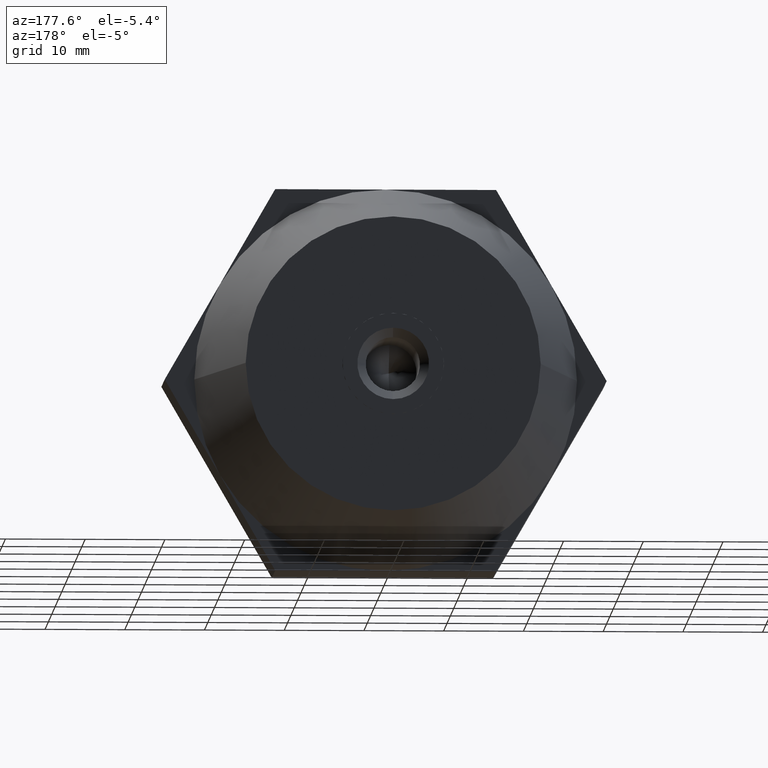
[diagram: clean part render]
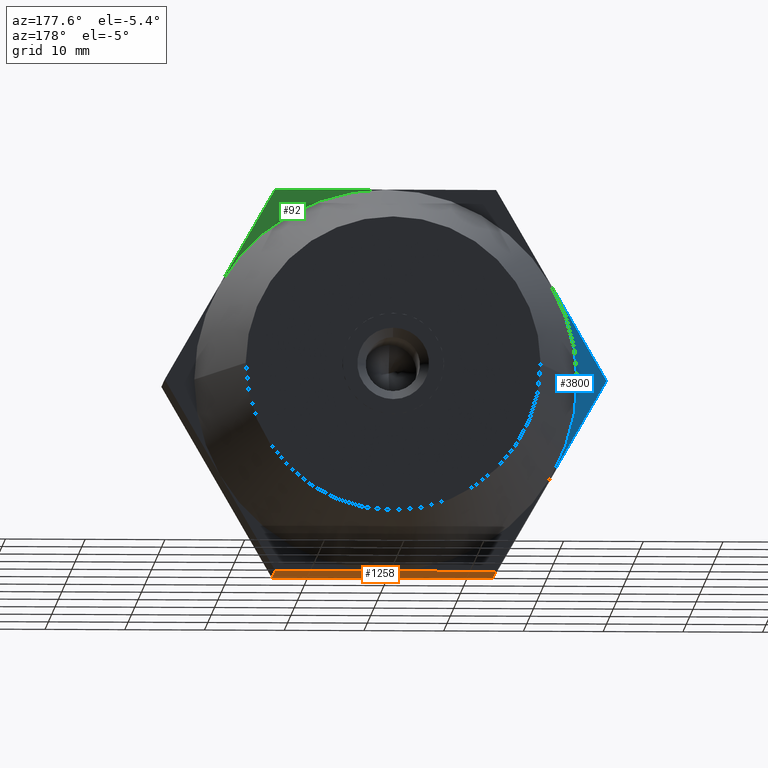
[diagram: same view with three faces highlighted in distinct colors, each labeled with its STEP entity id]
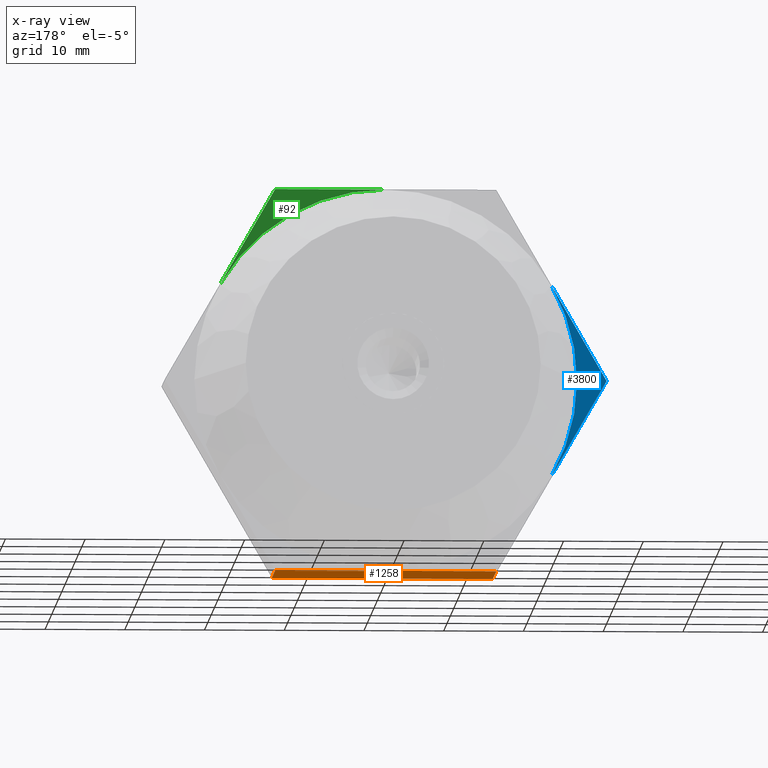
[diagram: x-ray of the same camera — body ghosted, the three highlighted faces saturated]
A machine part, auxiliary view with three faces highlighted in distinct colors.
The next image is the same camera in x-ray (body ghosted, the three faces saturated) — at least one of them is partly hidden behind the body in this view.
Their STEP definitions:

[orange] entity #1258 — the highlighted planar face has unit normal (0, 0, 1).
#95 = LINE ( 'NONE', #1515, #1305 ) ;
#148 = CARTESIAN_POINT ( 'NONE',  ( -13.85640646055101900, 5.000000000000000000, -24.00000000000000000 ) ) ;
#239 = CARTESIAN_POINT ( 'NONE',  ( 13.85640646055100000, 5.000000000000000000, -24.00000000000000000 ) ) ;
#263 = ORIENTED_EDGE ( 'NONE', *, *, #2297, .F. ) ;
#321 = EDGE_CURVE ( 'NONE', #2465, #3574, #926, .T. ) ;
#359 = DIRECTION ( 'NONE',  ( 1.251928832280965700E-016, 0.0000000000000000000, 1.000000000000000000 ) ) ;
#510 = ORIENTED_EDGE ( 'NONE', *, *, #321, .T. ) ;
#522 = VERTEX_POINT ( 'NONE', #148 ) ;
#682 = VECTOR ( 'NONE', #2739, 1000.000000000000000 ) ;
#699 = CARTESIAN_POINT ( 'NONE',  ( 13.85640646055100000, -5.000000000000000000, -24.00000000000000000 ) ) ;
#716 = EDGE_CURVE ( 'NONE', #2465, #2358, #95, .T. ) ;
#751 = VECTOR ( 'NONE', #999, 1000.000000000000000 ) ;
#926 = LINE ( 'NONE', #239, #1064 ) ;
#941 = ORIENTED_EDGE ( 'NONE', *, *, #2862, .F. ) ;
#978 = LINE ( 'NONE', #2450, #3179 ) ;
#999 = DIRECTION ( 'NONE',  ( 0.0000000000000000000, -1.000000000000000000, 0.0000000000000000000 ) ) ;
#1064 = VECTOR ( 'NONE', #2001, 1000.000000000000000 ) ;
#1173 = ORIENTED_EDGE ( 'NONE', *, *, #1371, .T. ) ;
#1199 = CARTESIAN_POINT ( 'NONE',  ( 13.85640646055100000, -5.000000000000000000, -24.00000000000000000 ) ) ;
#1238 = PLANE ( 'NONE',  #1242 ) ;
#1242 = AXIS2_PLACEMENT_3D ( 'NONE', #3589, #359, #3236 ) ;
#1258 = ADVANCED_FACE ( 'NONE', ( #2990 ), #1238, .F. ) ;
#1304 = VERTEX_POINT ( 'NONE', #2953 ) ;
#1305 = VECTOR ( 'NONE', #2403, 1000.000000000000000 ) ;
#1335 = DIRECTION ( 'NONE',  ( -1.000000000000000000, 0.0000000000000000000, 1.251928832280965700E-016 ) ) ;
#1371 = EDGE_CURVE ( 'NONE', #3574, #2812, #2614, .T. ) ;
#1421 = ORIENTED_EDGE ( 'NONE', *, *, #716, .F. ) ;
#1515 = CARTESIAN_POINT ( 'NONE',  ( 13.85640646055100000, 5.000000000000000000, -24.00000000000000000 ) ) ;
#1517 = CARTESIAN_POINT ( 'NONE',  ( 13.85640646055100000, 5.000000000000000000, -24.00000000000000000 ) ) ;
#1564 = DIRECTION ( 'NONE',  ( -1.000000000000000000, 0.0000000000000000000, 1.251928832280965700E-016 ) ) ;
#1809 = LINE ( 'NONE', #3088, #751 ) ;
#2001 = DIRECTION ( 'NONE',  ( 0.0000000000000000000, -1.000000000000000000, 0.0000000000000000000 ) ) ;
#2297 = EDGE_CURVE ( 'NONE', #522, #1304, #1809, .T. ) ;
#2358 = VERTEX_POINT ( 'NONE', #2533 ) ;
#2403 = DIRECTION ( 'NONE',  ( -1.000000000000000000, 0.0000000000000000000, 1.251928832280965700E-016 ) ) ;
#2426 = CARTESIAN_POINT ( 'NONE',  ( 13.85640646055100000, 5.000000000000000000, -24.00000000000000000 ) ) ;
#2450 = CARTESIAN_POINT ( 'NONE',  ( 13.85640646055100000, -5.000000000000000000, -24.00000000000000000 ) ) ;
#2465 = VERTEX_POINT ( 'NONE', #2426 ) ;
#2533 = CARTESIAN_POINT ( 'NONE',  ( -4.588507153800969100E-015, 5.000000000000000000, -24.00000000000000000 ) ) ;
#2614 = LINE ( 'NONE', #699, #682 ) ;
#2657 = LINE ( 'NONE', #1517, #3022 ) ;
#2694 = CARTESIAN_POINT ( 'NONE',  ( 4.476762181554119700E-016, -5.000000000000000000, -24.00000000000000000 ) ) ;
#2702 = EDGE_CURVE ( 'NONE', #2812, #1304, #978, .T. ) ;
#2733 = ORIENTED_EDGE ( 'NONE', *, *, #2702, .T. ) ;
#2739 = DIRECTION ( 'NONE',  ( -1.000000000000000000, 0.0000000000000000000, 1.251928832280965700E-016 ) ) ;
#2812 = VERTEX_POINT ( 'NONE', #2694 ) ;
#2862 = EDGE_CURVE ( 'NONE', #2358, #522, #2657, .T. ) ;
#2953 = CARTESIAN_POINT ( 'NONE',  ( -13.85640646055101900, -5.000000000000000000, -24.00000000000000000 ) ) ;
#2990 = FACE_OUTER_BOUND ( 'NONE', #3627, .T. ) ;
#3022 = VECTOR ( 'NONE', #1564, 1000.000000000000000 ) ;
#3088 = CARTESIAN_POINT ( 'NONE',  ( -13.85640646055101900, 5.000000000000000000, -24.00000000000000000 ) ) ;
#3179 = VECTOR ( 'NONE', #1335, 1000.000000000000000 ) ;
#3236 = DIRECTION ( 'NONE',  ( 1.000000000000000000, 0.0000000000000000000, -1.251928832280965700E-016 ) ) ;
#3574 = VERTEX_POINT ( 'NONE', #1199 ) ;
#3589 = CARTESIAN_POINT ( 'NONE',  ( 13.85640646055100000, 5.000000000000000000, -24.00000000000000000 ) ) ;
#3627 = EDGE_LOOP ( 'NONE', ( #1173, #2733, #263, #941, #1421, #510 ) ) ;

[blue] entity #3800 — the highlighted planar face has unit normal (0, 1, 0).
#117 = ORIENTED_EDGE ( 'NONE', *, *, #2839, .T. ) ;
#160 = DIRECTION ( 'NONE',  ( -1.549594883678885000E-016, 1.000000000000000000, 0.0000000000000000000 ) ) ;
#237 = CIRCLE ( 'NONE', #2149, 24.00000000000000000 ) ;
#266 = VERTEX_POINT ( 'NONE', #2320 ) ;
#353 = CARTESIAN_POINT ( 'NONE',  ( -27.71281292110205300, 5.000000000000000000, 1.212626971216108200E-016 ) ) ;
#487 = VERTEX_POINT ( 'NONE', #1274 ) ;
#696 = VERTEX_POINT ( 'NONE', #3004 ) ;
#709 = CARTESIAN_POINT ( 'NONE',  ( -13.85640646055101900, 5.000000000000000000, -24.00000000000000000 ) ) ;
#847 = EDGE_CURVE ( 'NONE', #1714, #487, #3730, .T. ) ;
#1007 = VECTOR ( 'NONE', #3284, 1000.000000000000000 ) ;
#1062 = LINE ( 'NONE', #353, #1007 ) ;
#1125 = DIRECTION ( 'NONE',  ( 0.0000000000000000000, 0.0000000000000000000, 1.000000000000000000 ) ) ;
#1274 = CARTESIAN_POINT ( 'NONE',  ( -27.71281292110205300, 5.000000000000000000, 1.212626971216108200E-016 ) ) ;
#1360 = DIRECTION ( 'NONE',  ( -1.549594883678885000E-016, 1.000000000000000000, 0.0000000000000000000 ) ) ;
#1490 = EDGE_CURVE ( 'NONE', #1714, #696, #1522, .T. ) ;
#1522 = CIRCLE ( 'NONE', #1910, 24.00000000000000000 ) ;
#1631 = CARTESIAN_POINT ( 'NONE',  ( 0.0000000000000000000, 5.000000000000000000, 0.0000000000000000000 ) ) ;
#1666 = VECTOR ( 'NONE', #3670, 1000.000000000000000 ) ;
#1714 = VERTEX_POINT ( 'NONE', #2939 ) ;
#1717 = FACE_OUTER_BOUND ( 'NONE', #2285, .T. ) ;
#1910 = AXIS2_PLACEMENT_3D ( 'NONE', #2526, #1360, #2823 ) ;
#1929 = ORIENTED_EDGE ( 'NONE', *, *, #2959, .F. ) ;
#2149 = AXIS2_PLACEMENT_3D ( 'NONE', #3383, #160, #3044 ) ;
#2285 = EDGE_LOOP ( 'NONE', ( #3475, #2634, #117, #1929 ) ) ;
#2320 = CARTESIAN_POINT ( 'NONE',  ( -20.78460969082655300, 5.000000000000000000, 12.00000000000000000 ) ) ;
#2526 = CARTESIAN_POINT ( 'NONE',  ( 1.902710531950845100E-015, 5.000000000000000000, 0.0000000000000000000 ) ) ;
#2634 = ORIENTED_EDGE ( 'NONE', *, *, #847, .T. ) ;
#2823 = DIRECTION ( 'NONE',  ( -1.000000000000000000, -1.445602896647339200E-016, 0.0000000000000000000 ) ) ;
#2839 = EDGE_CURVE ( 'NONE', #487, #266, #1062, .T. ) ;
#2895 = AXIS2_PLACEMENT_3D ( 'NONE', #1631, #2904, #1125 ) ;
#2904 = DIRECTION ( 'NONE',  ( 0.0000000000000000000, 1.000000000000000000, 0.0000000000000000000 ) ) ;
#2939 = CARTESIAN_POINT ( 'NONE',  ( -20.78460969082655300, 5.000000000000000000, -12.00000000000000000 ) ) ;
#2959 = EDGE_CURVE ( 'NONE', #696, #266, #237, .T. ) ;
#3004 = CARTESIAN_POINT ( 'NONE',  ( -24.00000000000001100, 4.999999999999996400, 2.939152317953649500E-015 ) ) ;
#3044 = DIRECTION ( 'NONE',  ( -1.000000000000000000, -1.445602896647339200E-016, 0.0000000000000000000 ) ) ;
#3096 = PLANE ( 'NONE',  #2895 ) ;
#3284 = DIRECTION ( 'NONE',  ( 0.4999999999999998900, 0.0000000000000000000, 0.8660254037844387100 ) ) ;
#3383 = CARTESIAN_POINT ( 'NONE',  ( 1.902710531950845100E-015, 5.000000000000000000, 0.0000000000000000000 ) ) ;
#3475 = ORIENTED_EDGE ( 'NONE', *, *, #1490, .F. ) ;
#3670 = DIRECTION ( 'NONE',  ( -0.4999999999999998900, 0.0000000000000000000, 0.8660254037844387100 ) ) ;
#3730 = LINE ( 'NONE', #709, #1666 ) ;
#3800 = ADVANCED_FACE ( 'NONE', ( #1717 ), #3096, .T. ) ;

[green] entity #92 — the highlighted planar face has unit normal (0, 1, 0).
#92 = ADVANCED_FACE ( 'NONE', ( #1158 ), #3345, .T. ) ;
#382 = DIRECTION ( 'NONE',  ( 0.0000000000000000000, 1.000000000000000000, 0.0000000000000000000 ) ) ;
#479 = CARTESIAN_POINT ( 'NONE',  ( -13.85640646055101900, 5.000000000000000000, 24.00000000000000000 ) ) ;
#503 = VERTEX_POINT ( 'NONE', #1619 ) ;
#795 = LINE ( 'NONE', #479, #2952 ) ;
#864 = EDGE_LOOP ( 'NONE', ( #3729, #2836, #3744 ) ) ;
#974 = CARTESIAN_POINT ( 'NONE',  ( 13.85640646055101900, 5.000000000000000000, 24.00000000000000000 ) ) ;
#1072 = AXIS2_PLACEMENT_3D ( 'NONE', #1869, #382, #1596 ) ;
#1102 = DIRECTION ( 'NONE',  ( -1.549594883678885000E-016, 1.000000000000000000, 0.0000000000000000000 ) ) ;
#1158 = FACE_OUTER_BOUND ( 'NONE', #864, .T. ) ;
#1596 = DIRECTION ( 'NONE',  ( 0.0000000000000000000, 0.0000000000000000000, 1.000000000000000000 ) ) ;
#1619 = CARTESIAN_POINT ( 'NONE',  ( 20.78460969082655300, 5.000000000000000000, 12.00000000000000000 ) ) ;
#1646 = CARTESIAN_POINT ( 'NONE',  ( 1.902710531950845100E-015, 5.000000000000000000, 0.0000000000000000000 ) ) ;
#1856 = VECTOR ( 'NONE', #2797, 1000.000000000000000 ) ;
#1869 = CARTESIAN_POINT ( 'NONE',  ( 0.0000000000000000000, 5.000000000000000000, 0.0000000000000000000 ) ) ;
#1987 = EDGE_CURVE ( 'NONE', #3163, #503, #3019, .T. ) ;
#2453 = AXIS2_PLACEMENT_3D ( 'NONE', #1646, #1102, #2842 ) ;
#2457 = VERTEX_POINT ( 'NONE', #974 ) ;
#2797 = DIRECTION ( 'NONE',  ( 0.4999999999999998900, 0.0000000000000000000, -0.8660254037844387100 ) ) ;
#2836 = ORIENTED_EDGE ( 'NONE', *, *, #3003, .T. ) ;
#2842 = DIRECTION ( 'NONE',  ( -1.000000000000000000, -1.445602896647339200E-016, 0.0000000000000000000 ) ) ;
#2952 = VECTOR ( 'NONE', #3733, 1000.000000000000000 ) ;
#3003 = EDGE_CURVE ( 'NONE', #3163, #2457, #795, .T. ) ;
#3019 = CIRCLE ( 'NONE', #2453, 24.00000000000000000 ) ;
#3163 = VERTEX_POINT ( 'NONE', #3453 ) ;
#3345 = PLANE ( 'NONE',  #1072 ) ;
#3453 = CARTESIAN_POINT ( 'NONE',  ( -4.588507153800969100E-015, 5.000000000000000000, 24.00000000000000000 ) ) ;
#3690 = CARTESIAN_POINT ( 'NONE',  ( 13.85640646055101900, 5.000000000000000000, 24.00000000000000000 ) ) ;
#3729 = ORIENTED_EDGE ( 'NONE', *, *, #1987, .F. ) ;
#3733 = DIRECTION ( 'NONE',  ( 1.000000000000000000, 0.0000000000000000000, 1.251928832280965700E-016 ) ) ;
#3743 = LINE ( 'NONE', #3690, #1856 ) ;
#3744 = ORIENTED_EDGE ( 'NONE', *, *, #3749, .T. ) ;
#3749 = EDGE_CURVE ( 'NONE', #2457, #503, #3743, .T. ) ;